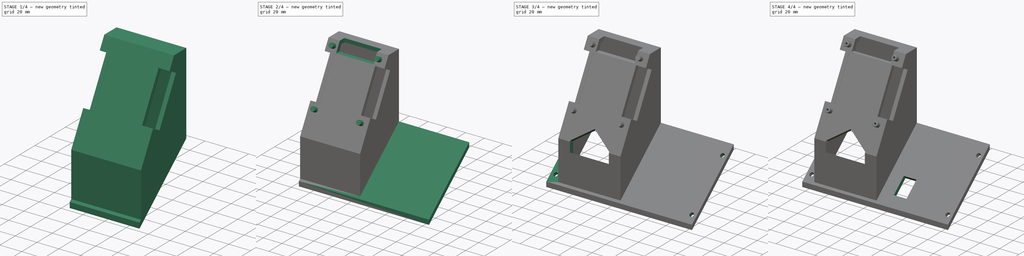
[diagram: build sequence overview — one tinted view per stage of 4, left to right]
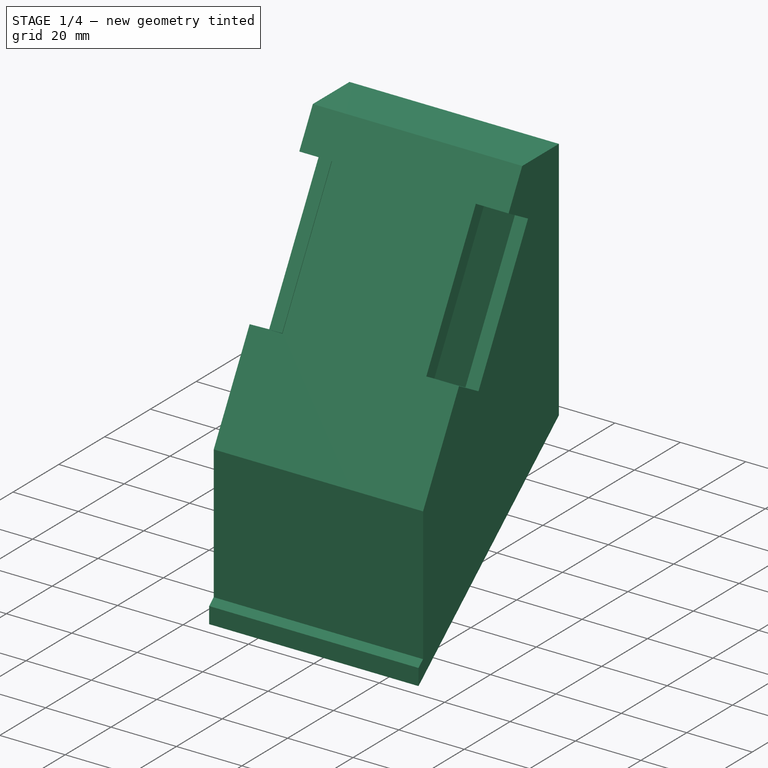
[diagram: stage 1 of 4 — iso view after this stage's code; geometry added in this stage tinted green]
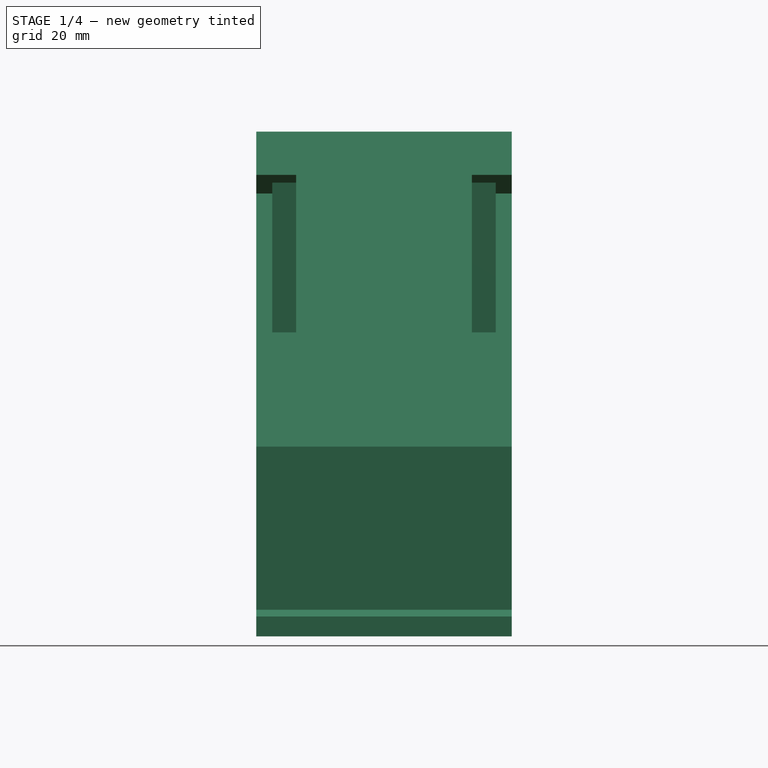
[diagram: stage 1 of 4 — front view after this stage's code; geometry added in this stage tinted green]
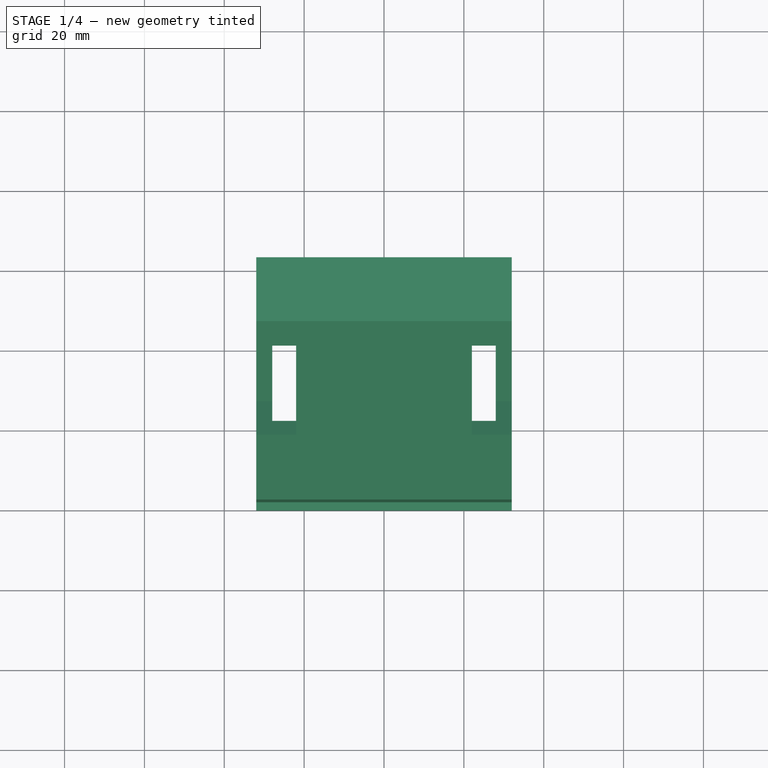
[diagram: stage 1 of 4 — top view after this stage's code; geometry added in this stage tinted green]
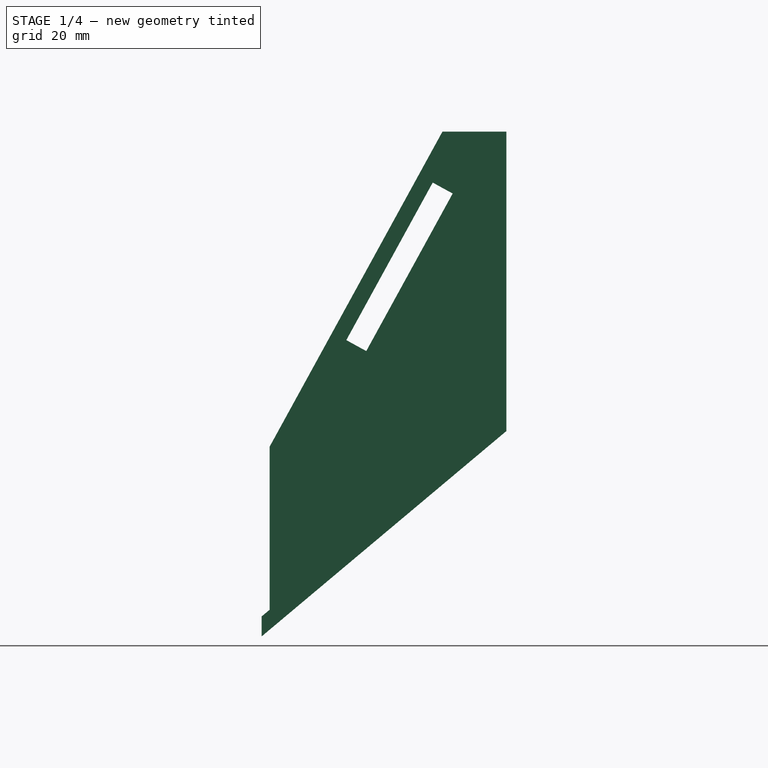
[diagram: stage 1 of 4 — right view after this stage's code; geometry added in this stage tinted green]
FCSTD DOCUMENT  (FreeCAD 2023.521R14555 (Git shallow))
Label: Controller_holder
License: All rights reserved
LicenseURL: https://en.wikipedia.org/wiki/All_rights_reserved
objects: Sketcher::SketchObject×11, PartDesign::Pocket×6, PartDesign::Pad×5, PartDesign::Fillet×2, PartDesign::Mirrored×1, PartDesign::Body×1
note: 65 computed .brp shape members not serialized (recipe doc carries the construction recipe); baked Part::Feature solids carry a one-line shape summary decoded from their .brp

FEATURE [Sketcher::SketchObject] Sketch
  ArcFitTolerance = 1e-06
  AttachmentSupport = -> [YZ_Plane]
  ExternalBSplineMaxDegree = 5
  ExternalBSplineTolerance = 0.0001
  FixShape = 1
  FullyConstrained = true
  InternalTolerance = 1e-06
  InvalidShape = false
  MakeInternals = false
  MapMode = 5
  Placement = pos=(0,0,0) rot=(0.57735,0.57735,0.57735;2.0944rad)
  Support = -> [YZ_Plane]
  TreeRank = 11
  ValidateShape = false
  sketch-geometry (18):
    g0: LineSegment [constr] StartX=0 StartY=0 StartZ=0 EndX=61.2836 EndY=51.423 EndZ=0
    g1: LineSegment StartX=61.2836 StartY=51.423 StartZ=0 EndX=61.2836 EndY=126.423 EndZ=0
    g2: LineSegment StartX=0 StartY=5 StartZ=0 EndX=0 EndY=0 EndZ=0
    g3: LineSegment StartX=61.2836 StartY=126.423 StartZ=0 EndX=45.2836 EndY=126.423 EndZ=0
    g4: LineSegment StartX=45.2836 StartY=126.423 StartZ=0 EndX=2 EndY=47.5146 EndZ=0
    g5: LineSegment StartX=2 StartY=47.5146 StartZ=0 EndX=2 EndY=27.5146 EndZ=0
    g6: LineSegment StartX=0 StartY=0 StartZ=0 EndX=6.56225 EndY=5.50638 EndZ=0
    g7: LineSegment StartX=61.2836 StartY=51.423 StartZ=0 EndX=57.2836 EndY=48.0666 EndZ=0
    g8: LineSegment StartX=0 StartY=5 StartZ=0 EndX=2 EndY=6.6782 EndZ=0
    g9: LineSegment StartX=2 StartY=27.5146 StartZ=0 EndX=2 EndY=6.6782 EndZ=0
    g10: LineSegment StartX=47.6517 StartY=122.423 StartZ=0 EndX=6.56225 EndY=47.5146 EndZ=0
    g11: LineSegment StartX=6.56225 StartY=47.5146 StartZ=0 EndX=6.56225 EndY=5.50638 EndZ=0
    g12: LineSegment StartX=47.6517 StartY=122.423 StartZ=0 EndX=57.2836 EndY=122.423 EndZ=0
    g13: LineSegment StartX=57.2836 StartY=122.423 StartZ=0 EndX=57.2836 EndY=48.0666 EndZ=0
    g14: LineSegment [constr] StartX=57.2836 StartY=122.423 StartZ=0 EndX=61.2836 EndY=122.423 EndZ=0
    g15: LineSegment [constr] StartX=57.2836 StartY=122.423 StartZ=0 EndX=57.2836 EndY=126.423 EndZ=0
    g16: LineSegment [constr] StartX=47.6517 StartY=122.423 StartZ=0 EndX=44.1447 EndY=124.347 EndZ=0
    g17: LineSegment [constr] StartX=2 StartY=47.5146 StartZ=0 EndX=6.56225 EndY=47.5146 EndZ=0
  constraints (51):
    c: Coincident(g0,g-1)
    c: Coincident(g2,g0)
    c: Coincident(g0,g1)
    c: Vertical(g1)
    c: Distance(g0) = 80
    c: Angle(g-1,g0) = 0.698132
    c: DistanceY(g1,g1) = 75
    c: Coincident(g3,g1)
    c: Horizontal(g3)
    c: Coincident(g4,g3)
    c: Coincident(g5,g4)
    c: Vertical(g5)
    c: Distance(g4) = 90
    c: DistanceX(g3,g3) = 16
    c: Vertical(g2)
    c: DistanceY(g2,g2) = 5
    c: Coincident(g6,g2)
    c: PointOnObject(g6,g0)
    c: Coincident(g7,g1)
    c: PointOnObject(g7,g0)
    c: Coincident(g8,g2)
    c: Coincident(g9,g5)
    c: Coincident(g9,g8)
    c: Vertical(g9)
    c: Parallel(g8,g6)
    c: DistanceY(g5,g5) = 20
    c: DistanceX(g2,g8) = 2
    c: Coincident(g11,g10)
    c: Vertical(g11)
    c: Coincident(g11,g6)
    c: Parallel(g10,g4)
    c: Coincident(g12,g10)
    c: Coincident(g13,g12)
    c: Coincident(g13,g7)
    c: Vertical(g13)
    c: Horizontal(g12)
    c: DistanceX(g12,g1) = 4
    c: Coincident(g14,g12)
    c: PointOnObject(g14,g1)
    c: Horizontal(g14)
    c: Coincident(g15,g12)
    c: PointOnObject(g15,g3)
    c: Vertical(g15)
    c: Equal(g15,g14)
    c: PointOnObject(g16,g4)
    c: Coincident(g16,g10)
    c: Perpendicular(g10,g16)
    c: Equal(g16,g15)
    c: Coincident(g17,g4)
    c: Coincident(g17,g10)
    c: Horizontal(g17)
FEATURE [PartDesign::Pad] Pad
  AddSubType = 0
  AlongSketchNormal = false
  AutoTaperInnerAngle = true
  CheckUpToFaceLimits = true
  ClaimChildren = false
  Direction = (1,-2e-16,3e-16)
  Fit = 0
  FitJoin = 0
  FixShape = 1
  InnerFit = 0
  InnerFitJoin = 0
  InvalidShape = false
  Length = 56
  Length2 = 10
  Linearize = true
  Midplane = true
  NewSolid = false
  Profile = -> Sketch
  ReferenceAxis = -> Sketch [N_Axis]
  Refine = true
  Suppress = false
  TaperInnerAngle = 0
  TaperInnerAngleRev = 0
  TreeRank = 12
  Type = 0
  ValidateShape = true
  _ProfileBasedVersion = 1
FEATURE [Sketcher::SketchObject] Sketch001
  ArcFitTolerance = 1e-06
  AttachmentSupport = -> [Pad]
  ExternalBSplineMaxDegree = 5
  ExternalBSplineTolerance = 0.0001
  ExternalGeometry = -> [Pad]
  FixShape = 1
  FullyConstrained = true
  InternalTolerance = 1e-06
  InvalidShape = false
  MakeInternals = false
  MapMode = 5
  Placement = pos=(28,-6.2e-15,6.2e-15) rot=(0.57735,0.57735,0.57735;2.0944rad)
  Support = -> [Pad]
  TreeRank = 13
  ValidateShape = false
  sketch-geometry (1):
    g0: LineSegment StartX=61.2836 StartY=51.423 StartZ=0 EndX=-7.1e-15 EndY=-7.1e-15 EndZ=0
  constraints (2):
    c: Coincident(g0,g-4)
    c: Coincident(g0,g-8)
FEATURE [PartDesign::Pad] Pad001
  AddSubType = 0
  AlongSketchNormal = false
  AutoTaperInnerAngle = true
  BaseFeature = -> Pad
  CheckUpToFaceLimits = true
  ClaimChildren = false
  Direction = (1,-2e-16,2e-16)
  Fit = 0
  FitJoin = 0
  FixShape = 1
  InnerFit = 0
  InnerFitJoin = 0
  InvalidShape = false
  Length = 4
  Length2 = 10
  Linearize = true
  NewSolid = false
  Profile = -> Sketch001
  ReferenceAxis = -> Sketch001 [N_Axis]
  Refine = true
  Suppress = false
  TaperInnerAngle = 0
  TaperInnerAngleRev = 0
  TreeRank = 14
  Type = 0
  ValidateShape = true
  _ProfileBasedVersion = 1
FEATURE [Sketcher::SketchObject] Sketch002
  ArcFitTolerance = 1e-06
  AttachmentSupport = -> [Pad001]
  ExternalBSplineMaxDegree = 5
  ExternalBSplineTolerance = 0.0001
  ExternalGeometry = -> [Pad001]
  FixShape = 1
  FullyConstrained = true
  InternalTolerance = 1e-06
  InvalidShape = false
  MakeInternals = false
  MapMode = 5
  Placement = pos=(32,-8e-15,7.5e-15) rot=(0.57735,0.57735,0.57735;2.0944rad)
  Support = -> [Pad001]
  TreeRank = 15
  ValidateShape = false
  sketch-geometry (6):
    g0: LineSegment StartX=42.8424 StartY=113.655 StartZ=0 EndX=47.8424 EndY=110.913 EndZ=0
    g1: LineSegment StartX=47.8424 StartY=110.913 StartZ=0 EndX=26.2006 EndY=71.4586 EndZ=0
    g2: LineSegment StartX=26.2006 StartY=71.4586 StartZ=0 EndX=21.2006 EndY=74.2012 EndZ=0
    g3: LineSegment StartX=42.8424 StartY=113.655 StartZ=0 EndX=34.0748 EndY=118.465 EndZ=0
    g4: LineSegment StartX=34.0748 StartY=118.465 StartZ=0 EndX=12.433 EndY=79.0105 EndZ=0
    g5: LineSegment StartX=12.433 StartY=79.0105 StartZ=0 EndX=21.2006 EndY=74.2012 EndZ=0
  constraints (18):
    c: PointOnObject(g0,g-3)
    c: Coincident(g1,g0)
    c: Coincident(g2,g1)
    c: PointOnObject(g2,g-3)
    c: Coincident(g3,g0)
    c: Coincident(g5,g4)
    c: Coincident(g5,g2)
    c: Parallel(g5,g2)
    c: Parallel(g2,g3)
    c: Parallel(g3,g0)
    c: Distance(g1) = 45
    c: Distance(g0,g-3) = 10
    c: Coincident(g3,g4)
    c: Parallel(g4,g-3)
    c: Parallel(g-3,g1)
    c: Perpendicular(g3,g-3)
    c: Distance(g3) = 10
    c: DistanceX(g0,g0) = 5
FEATURE [PartDesign::Pocket] Pocket
  AddSubType = 1
  AlongSketchNormal = false
  AutoTaperInnerAngle = true
  BaseFeature = -> Pad001
  CheckUpToFaceLimits = true
  ClaimChildren = false
  Direction = (-1,2e-16,-2e-16)
  Fit = 0
  FitJoin = 0
  FixShape = 1
  InnerFit = 0
  InnerFitJoin = 0
  InvalidShape = false
  Length = 10
  Length2 = 10
  Linearize = true
  NewSolid = false
  Profile = -> Sketch002
  ReferenceAxis = -> Sketch002 [N_Axis]
  Refine = true
  Suppress = false
  TaperInnerAngle = 0
  TaperInnerAngleRev = 0
  TreeRank = 16
  Type = 0
  ValidateShape = true
  _ProfileBasedVersion = 1
  _Version = 1
FEATURE [PartDesign::Mirrored] Mirrored
  AddSubType = 0
  BaseFeature = -> Pocket
  CopyShape = false
  FixShape = 1
  InvalidShape = false
  MirrorPlane = -> YZ_Plane
  NewSolid = false
  OriginalSubs = -> [Pocket,Pad001]
  Originals = -> [Pocket,Pad001]
  ParallelTransform = true
  Refine = true
  SubTransform = true
  Suppress = false
  TreeRank = 17
  ValidateShape = true
  _Version = 3
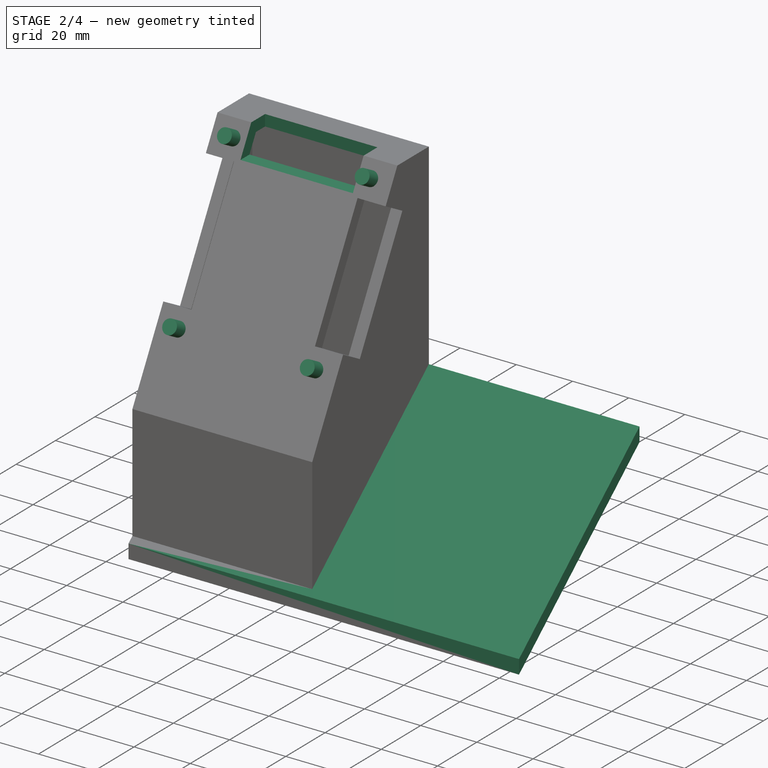
[diagram: stage 2 of 4 — iso view after this stage's code; geometry added in this stage tinted green]
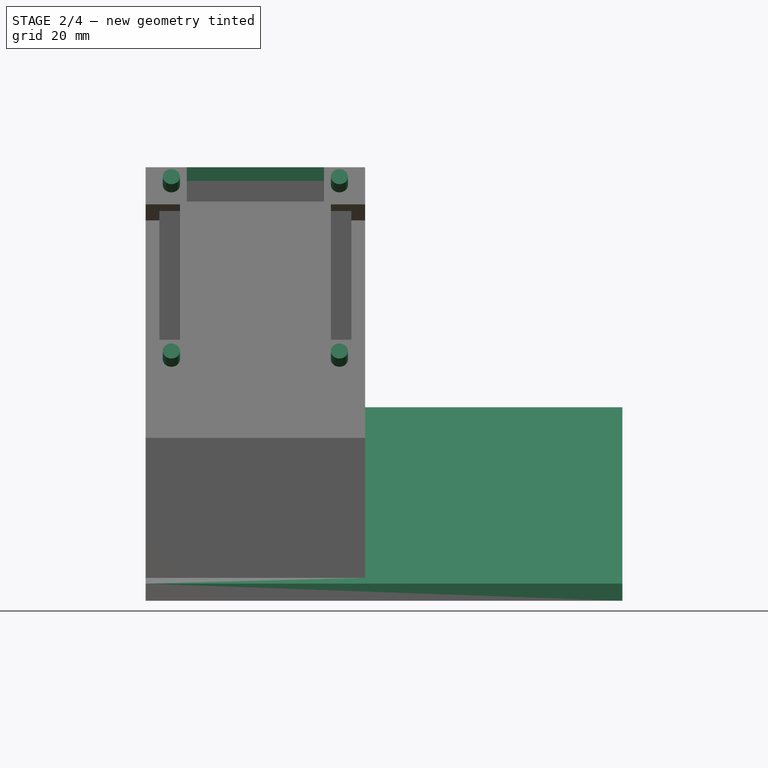
[diagram: stage 2 of 4 — front view after this stage's code; geometry added in this stage tinted green]
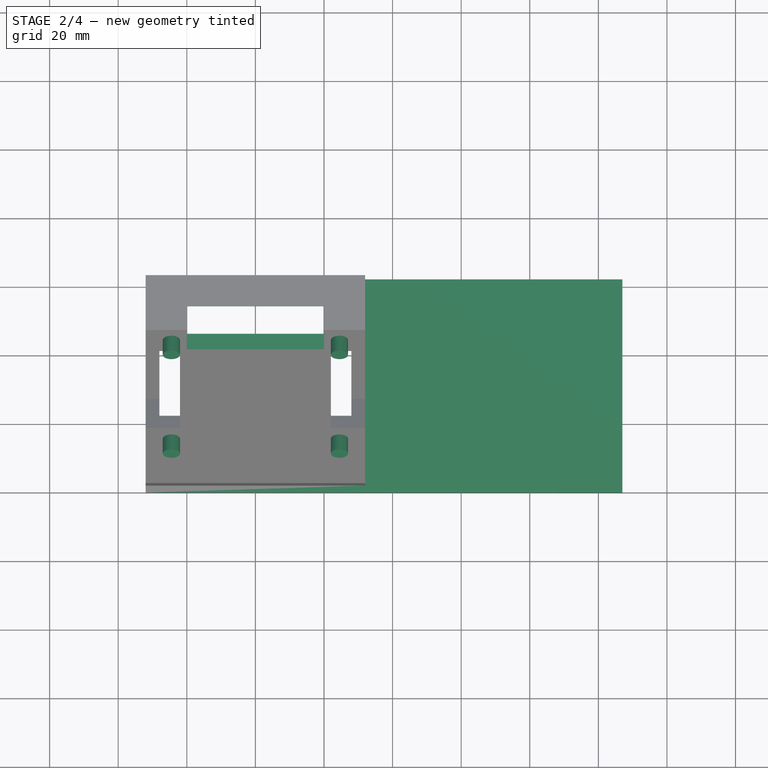
[diagram: stage 2 of 4 — top view after this stage's code; geometry added in this stage tinted green]
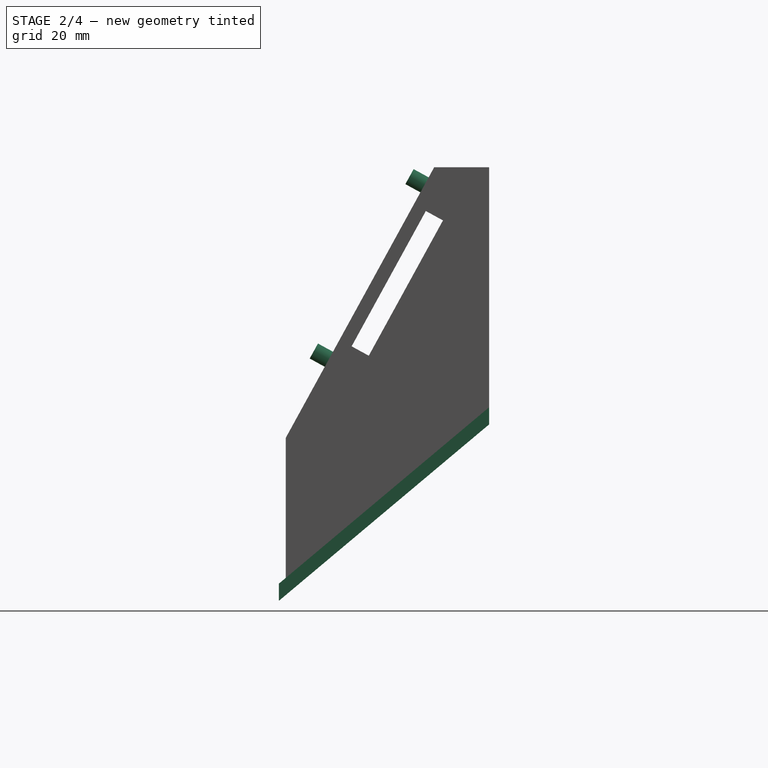
[diagram: stage 2 of 4 — right view after this stage's code; geometry added in this stage tinted green]
FEATURE [Sketcher::SketchObject] Sketch003
  ArcFitTolerance = 1e-06
  AttachmentSupport = -> [Mirrored]
  ExternalBSplineMaxDegree = 5
  ExternalBSplineTolerance = 0.0001
  ExternalGeometry = -> [Mirrored]
  FixShape = 1
  FullyConstrained = true
  InternalTolerance = 1e-06
  InvalidShape = false
  MakeInternals = false
  MapMode = 5
  Placement = pos=(-1.74e-14,-8.98e-14,126.423) rot=(0,0,1;0rad)
  Support = -> [Mirrored]
  TreeRank = 18
  ValidateShape = false
  sketch-geometry (7):
    g0: LineSegment StartX=-20 StartY=45.2836 StartZ=0 EndX=-20 EndY=35.2836 EndZ=0
    g1: LineSegment StartX=-20 StartY=35.2836 StartZ=0 EndX=20 EndY=35.2836 EndZ=0
    g2: LineSegment StartX=20 StartY=35.2836 StartZ=0 EndX=20 EndY=45.2836 EndZ=0
    g3: LineSegment StartX=20 StartY=45.2836 StartZ=0 EndX=20 EndY=52.2836 EndZ=0
    g4: LineSegment StartX=-20 StartY=52.2836 StartZ=0 EndX=-20 EndY=45.2836 EndZ=0
    g5: GeomPoint [constr] X=7.4e-15 Y=45.2836 Z=0
    g6: LineSegment StartX=-20 StartY=52.2836 StartZ=0 EndX=20 EndY=52.2836 EndZ=0
  constraints (18):
    c: Horizontal(g1)
    c: Coincident(g2,g1)
    c: Coincident(g3,g2)
    c: Coincident(g4,g0)
    c: Coincident(g0,g1)
    c: Parallel(g0,g4)
    c: Parallel(g4,g3)
    c: Parallel(g3,g2)
    c: Parallel(g2,g-2)
    c: Symmetric(g0,g2,g5)
    c: DistanceY(g2,g2) = 10
    c: DistanceX(g1,g1) = 40
    c: Symmetric(g-3,g-3,g5)
    c: Horizontal(g0,g-3)
    c: Horizontal(g6)
    c: DistanceY(g0,g6) = 17
    c: Coincident(g6,g4)
    c: Coincident(g6,g3)
FEATURE [PartDesign::Pocket] Pocket001
  AddSubType = 1
  AlongSketchNormal = false
  AutoTaperInnerAngle = true
  BaseFeature = -> Mirrored
  CheckUpToFaceLimits = true
  ClaimChildren = false
  Direction = (1e-16,7e-16,-1)
  Fit = 0
  FitJoin = 0
  FixShape = 1
  InnerFit = 0
  InnerFitJoin = 0
  InvalidShape = false
  Length = 10
  Length2 = 10
  Linearize = true
  NewSolid = false
  Profile = -> Sketch003
  ReferenceAxis = -> Sketch003 [N_Axis]
  Refine = true
  Suppress = false
  TaperInnerAngle = 0
  TaperInnerAngleRev = 0
  TreeRank = 19
  Type = 0
  ValidateShape = true
  _ProfileBasedVersion = 1
  _Version = 1
FEATURE [Sketcher::SketchObject] Sketch004
  ArcFitTolerance = 1e-06
  AttachmentSupport = -> [Pocket001]
  ExternalBSplineMaxDegree = 5
  ExternalBSplineTolerance = 0.0001
  ExternalGeometry = -> [Pocket001]
  FixShape = 1
  FullyConstrained = true
  InternalTolerance = 1e-06
  InvalidShape = false
  MakeInternals = false
  MapMode = 5
  Placement = pos=(-4.2e-15,-18.4975,10.1464) rot=(1,0,0;1.06908rad)
  Support = -> [Pocket001]
  TreeRank = 20
  ValidateShape = false
  sketch-geometry (11):
    g0: Circle CenterX=-24.5 CenterY=126.753 CenterZ=0 NormalX=0 NormalY=0 NormalZ=1 AngleXU=0 Radius=2.5
    g1: Circle CenterX=24.5 CenterY=126.753 CenterZ=0 NormalX=0 NormalY=0 NormalZ=1 AngleXU=0 Radius=2.5
    g2: Circle CenterX=24.5 CenterY=68.7526 CenterZ=0 NormalX=0 NormalY=0 NormalZ=1 AngleXU=0 Radius=2.5
    g3: Circle CenterX=-24.5 CenterY=68.7526 CenterZ=0 NormalX=0 NormalY=0 NormalZ=1 AngleXU=0 Radius=2.5
    g4: LineSegment [constr] StartX=-24.5 StartY=68.7526 StartZ=0 EndX=-24.5 EndY=126.753 EndZ=0
    g5: LineSegment [constr] StartX=-24.5 StartY=126.753 StartZ=0 EndX=24.5 EndY=126.753 EndZ=0
    g6: LineSegment [constr] StartX=24.5 StartY=126.753 StartZ=0 EndX=24.5 EndY=68.7526 EndZ=0
    g7: LineSegment [constr] StartX=24.5 StartY=68.7526 StartZ=0 EndX=-24.5 EndY=68.7526 EndZ=0
    g8: GeomPoint [constr] X=0 Y=97.7526 Z=0
    g9: GeomPoint [constr] X=22 Y=97.7526 Z=0
    g10: GeomPoint [constr] X=24.5 Y=97.7526 Z=0
  constraints (23):
    c: Equal(g0,g1)
    c: Equal(g1,g2)
    c: Equal(g2,g3)
    c: Coincident(g4,g5)
    c: Coincident(g5,g6)
    c: Coincident(g6,g7)
    c: Coincident(g7,g4)
    c: Horizontal(g5)
    c: Horizontal(g7)
    c: Vertical(g4)
    c: Vertical(g6)
    c: Symmetric(g5,g4,g8)
    c: PointOnObject(g8,g-2)
    c: Coincident(g5,g1)
    c: Coincident(g2,g6)
    c: Coincident(g3,g4)
    c: Coincident(g0,g4)
    c: DistanceX(g5,g5) = 49
    c: DistanceY(g6,g6) = 58
    c: Diameter(g3) = 5
    c: Symmetric(g6,g6,g10)
    c: Symmetric(g-3,g-3,g9)
    c: Horizontal(g9,g10)
FEATURE [Sketcher::SketchObject] Sketch005
  ArcFitTolerance = 1e-06
  AttachmentSupport = -> [Pocket001]
  ExternalBSplineMaxDegree = 5
  ExternalBSplineTolerance = 0.0001
  ExternalGeometry = -> [Pocket001]
  FixShape = 1
  FullyConstrained = true
  InternalTolerance = 1e-06
  InvalidShape = false
  MakeInternals = false
  MapMode = 5
  Placement = pos=(32,-8e-15,7.5e-15) rot=(0.57735,0.57735,0.57735;2.0944rad)
  Support = -> [Pocket001]
  TreeRank = 21
  ValidateShape = false
  sketch-geometry (2):
    g0: LineSegment StartX=2.1e-15 StartY=5 StartZ=0 EndX=61.2836 EndY=56.423 EndZ=0
    g1: LineSegment StartX=61.2836 StartY=56.423 StartZ=0 EndX=61.2836 EndY=51.423 EndZ=0
  constraints (5):
    c: Coincident(g0,g-4)
    c: Coincident(g1,g0)
    c: Coincident(g1,g-3)
    c: Vertical(g1)
    c: Parallel(g0,g-3)
FEATURE [PartDesign::Pad] Pad002
  AddSubType = 0
  AlongSketchNormal = false
  AutoTaperInnerAngle = true
  BaseFeature = -> Pocket001
  CheckUpToFaceLimits = true
  ClaimChildren = false
  Direction = (1,-2e-16,2e-16)
  Fit = 0
  FitJoin = 0
  FixShape = 1
  InnerFit = 0
  InnerFitJoin = 0
  InvalidShape = false
  Length = 75
  Length2 = 75
  Linearize = true
  NewSolid = false
  Profile = -> Sketch005
  ReferenceAxis = -> Sketch005 [N_Axis]
  Refine = true
  Suppress = false
  TaperInnerAngle = 0
  TaperInnerAngleRev = 0
  TreeRank = 22
  Type = 0
  ValidateShape = true
  _ProfileBasedVersion = 1
FEATURE [PartDesign::Pad] Pad003
  AddSubType = 0
  AlongSketchNormal = false
  AutoTaperInnerAngle = true
  BaseFeature = -> Pad002
  CheckUpToFaceLimits = true
  ClaimChildren = false
  Direction = (-2e-16,-0.87676,0.480928)
  Fit = 0
  FitJoin = 0
  FixShape = 1
  InnerFit = 0
  InnerFitJoin = 0
  InvalidShape = false
  Length = 5
  Length2 = 10
  Linearize = true
  NewSolid = false
  Profile = -> Sketch004
  ReferenceAxis = -> Sketch004 [N_Axis]
  Refine = true
  Suppress = false
  TaperInnerAngle = 0
  TaperInnerAngleRev = 0
  TreeRank = 23
  Type = 0
  ValidateShape = true
  _ProfileBasedVersion = 1
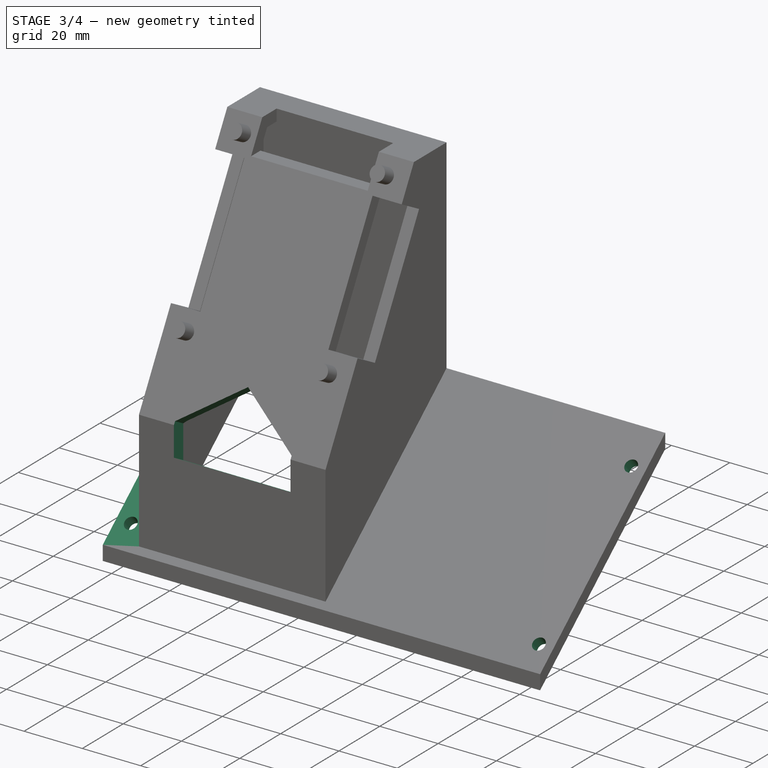
[diagram: stage 3 of 4 — iso view after this stage's code; geometry added in this stage tinted green]
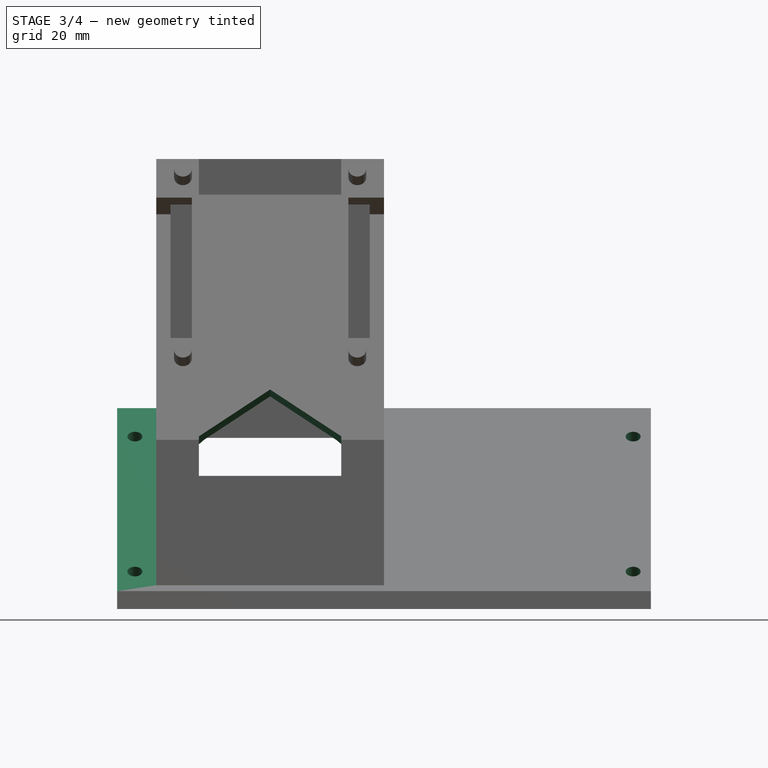
[diagram: stage 3 of 4 — front view after this stage's code; geometry added in this stage tinted green]
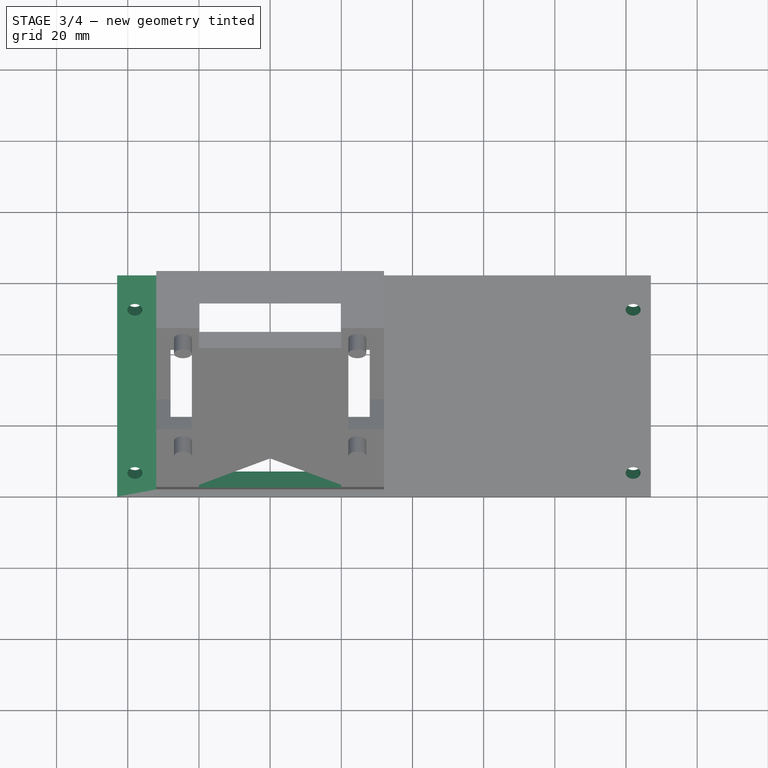
[diagram: stage 3 of 4 — top view after this stage's code; geometry added in this stage tinted green]
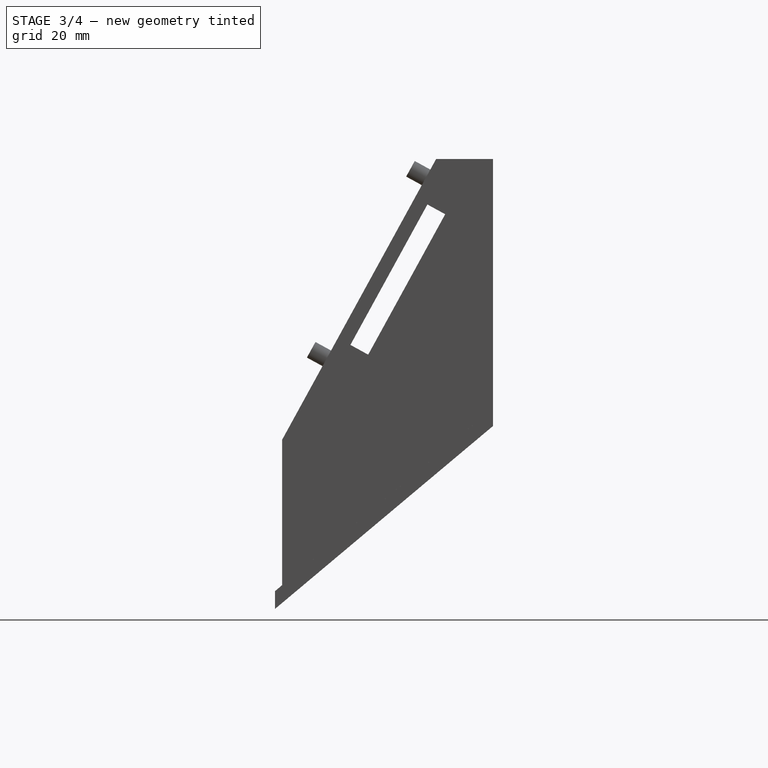
[diagram: stage 3 of 4 — right view after this stage's code; geometry added in this stage tinted green]
FEATURE [Sketcher::SketchObject] Sketch006
  ArcFitTolerance = 1e-06
  AttachmentSupport = -> [Pad003]
  ExternalBSplineMaxDegree = 5
  ExternalBSplineTolerance = 0.0001
  ExternalGeometry = -> [Pad003]
  FixShape = 1
  FullyConstrained = true
  InternalTolerance = 1e-06
  InvalidShape = false
  MakeInternals = false
  MapMode = 5
  Placement = pos=(-4.2e-15,-18.4975,10.1464) rot=(1,0,0;1.06908rad)
  Support = -> [Pad003]
  TreeRank = 24
  ValidateShape = false
  sketch-geometry (6):
    g0: LineSegment StartX=-20 StartY=33.7526 StartZ=0 EndX=-20 EndY=43.7526 EndZ=0
    g1: LineSegment StartX=20 StartY=43.7526 StartZ=0 EndX=20 EndY=33.7526 EndZ=0
    g2: LineSegment StartX=20 StartY=33.7526 StartZ=0 EndX=-20 EndY=33.7526 EndZ=0
    g3: GeomPoint [constr] X=0 Y=38.7526 Z=0
    g4: LineSegment StartX=-20 StartY=43.7526 StartZ=0 EndX=0 EndY=58.7526 EndZ=0
    g5: LineSegment StartX=0 StartY=58.7526 StartZ=0 EndX=20 EndY=43.7526 EndZ=0
  constraints (16):
    c: Coincident(g1,g2)
    c: Coincident(g2,g0)
    c: Horizontal(g2)
    c: Vertical(g0)
    c: Vertical(g1)
    c: Symmetric(g1,g0,g3)
    c: PointOnObject(g3,g-2)
    c: Vertical(g0,g-3)
    c: DistanceY(g0,g0) = 10
    c: DistanceY(g0,g-4) = 25
    c: Coincident(g4,g0)
    c: PointOnObject(g4,g-2)
    c: Coincident(g5,g4)
    c: Coincident(g5,g1)
    c: Horizontal(g1,g0)
    c: DistanceY(g1,g4) = 15
FEATURE [PartDesign::Pocket] Pocket002
  AddSubType = 1
  AlongSketchNormal = false
  AutoTaperInnerAngle = true
  BaseFeature = -> Pad003
  CheckUpToFaceLimits = true
  ClaimChildren = false
  Direction = (2e-16,0.87676,-0.480928)
  Fit = 0
  FitJoin = 0
  FixShape = 1
  InnerFit = 0
  InnerFitJoin = 0
  InvalidShape = false
  Length = 15
  Length2 = 10
  Linearize = true
  NewSolid = false
  Profile = -> Sketch006
  ReferenceAxis = -> Sketch006 [N_Axis]
  Refine = true
  Suppress = false
  TaperInnerAngle = 0
  TaperInnerAngleRev = 0
  TreeRank = 25
  Type = 0
  ValidateShape = true
  _ProfileBasedVersion = 1
  _Version = 1
FEATURE [Sketcher::SketchObject] Sketch007
  ArcFitTolerance = 1e-06
  AttachmentSupport = -> [Pocket001]
  ExternalBSplineMaxDegree = 5
  ExternalBSplineTolerance = 0.0001
  ExternalGeometry = -> [Pocket001]
  FixShape = 1
  FullyConstrained = true
  InternalTolerance = 1e-06
  InvalidShape = false
  MakeInternals = false
  MapMode = 5
  Placement = pos=(-32,-9e-16,4e-16) rot=(0.57735,-0.57735,-0.57735;2.0944rad)
  Support = -> [Pocket001]
  TreeRank = 26
  ValidateShape = false
  sketch-geometry (2):
    g0: LineSegment StartX=5.1e-15 StartY=5 StartZ=0 EndX=-61.2836 EndY=56.423 EndZ=0
    g1: LineSegment StartX=-61.2836 StartY=56.423 StartZ=0 EndX=-61.2836 EndY=51.423 EndZ=0
  constraints (5):
    c: Coincident(g0,g-4)
    c: Coincident(g1,g0)
    c: Coincident(g1,g-3)
    c: Vertical(g1)
    c: Parallel(g0,g-3)
FEATURE [PartDesign::Pad] Pad004
  AddSubType = 0
  AlongSketchNormal = false
  AutoTaperInnerAngle = true
  BaseFeature = -> Pocket002
  CheckUpToFaceLimits = true
  ClaimChildren = false
  Direction = (-1,0,0)
  Fit = 0
  FitJoin = 0
  FixShape = 1
  InnerFit = 0
  InnerFitJoin = 0
  InvalidShape = false
  Length = 10
  Length2 = 10
  Linearize = true
  NewSolid = false
  Offset = -150
  Profile = -> Sketch007
  ReferenceAxis = -> Sketch007 [N_Axis]
  Refine = true
  Suppress = false
  TaperInnerAngle = 0
  TaperInnerAngleRev = 0
  TreeRank = 27
  Type = 3
  UpToFace = -> Pocket002 [Face1]
  ValidateShape = true
  _ProfileBasedVersion = 1
FEATURE [Sketcher::SketchObject] Sketch008
  ArcFitTolerance = 1e-06
  AttachmentSupport = -> [Pad004]
  ExternalBSplineMaxDegree = 5
  ExternalBSplineTolerance = 0.0001
  ExternalGeometry = -> [Pad004]
  FixShape = 1
  FullyConstrained = true
  InternalTolerance = 1e-06
  InvalidShape = false
  MakeInternals = false
  MapMode = 5
  Placement = pos=(-7e-16,-2.46202,2.93412) rot=(1,0,0;0.698132rad)
  Support = -> [Pad004]
  TreeRank = 28
  ValidateShape = false
  sketch-geometry (8):
    g0: Circle CenterX=-38 CenterY=11.7784 CenterZ=0 NormalX=0 NormalY=0 NormalZ=1 AngleXU=0 Radius=2.1
    g1: Circle CenterX=102 CenterY=11.7784 CenterZ=0 NormalX=0 NormalY=0 NormalZ=1 AngleXU=0 Radius=2.1
    g2: Circle CenterX=-38 CenterY=70.7784 CenterZ=0 NormalX=0 NormalY=0 NormalZ=1 AngleXU=0 Radius=2.1
    g3: Circle CenterX=102 CenterY=70.7784 CenterZ=0 NormalX=0 NormalY=0 NormalZ=1 AngleXU=0 Radius=2.1
    g4: LineSegment [constr] StartX=-38 StartY=11.7784 StartZ=0 EndX=102 EndY=11.7784 EndZ=0
    g5: LineSegment [constr] StartX=102 StartY=11.7784 StartZ=0 EndX=102 EndY=70.7784 EndZ=0
    g6: LineSegment [constr] StartX=102 StartY=70.7784 StartZ=0 EndX=-38 EndY=70.7784 EndZ=0
    g7: LineSegment [constr] StartX=-38 StartY=70.7784 StartZ=0 EndX=-38 EndY=11.7784 EndZ=0
  constraints (20):
    c: DistanceX(g0,g1) = 140
    c: Coincident(g4,g5)
    c: Coincident(g5,g6)
    c: Coincident(g6,g7)
    c: Coincident(g7,g4)
    c: Horizontal(g4)
    c: Horizontal(g6)
    c: Vertical(g5)
    c: Vertical(g7)
    c: Coincident(g4,g0)
    c: Coincident(g5,g3)
    c: Coincident(g1,g4)
    c: Coincident(g2,g6)
    c: DistanceY(g7,g7) = 59
    c: DistanceY(g2,g-3) = 4
    c: DistanceX(g-4,g2) = 5
    c: Equal(g0,g1)
    c: Equal(g1,g2)
    c: Equal(g2,g3)
    c: Diameter(g0) = 4.2
FEATURE [PartDesign::Pocket] Pocket003
  AddSubType = 1
  AlongSketchNormal = false
  AutoTaperInnerAngle = true
  BaseFeature = -> Pad004
  CheckUpToFaceLimits = true
  ClaimChildren = false
  Direction = (2e-16,0.642788,-0.766044)
  Fit = 0
  FitJoin = 0
  FixShape = 1
  InnerFit = 0
  InnerFitJoin = 0
  InvalidShape = false
  Length = 5
  Length2 = 10
  Linearize = true
  NewSolid = false
  Profile = -> Sketch008
  ReferenceAxis = -> Sketch008 [N_Axis]
  Refine = true
  Suppress = false
  TaperInnerAngle = 0
  TaperInnerAngleRev = 0
  TreeRank = 29
  Type = 1
  ValidateShape = true
  _ProfileBasedVersion = 1
  _Version = 1
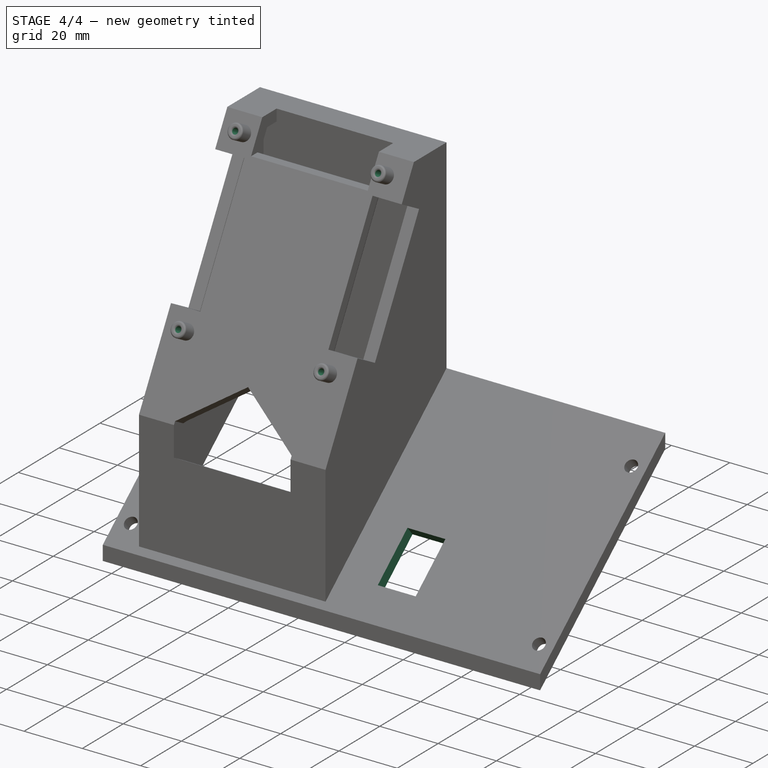
[diagram: stage 4 of 4 — iso view after this stage's code; geometry added in this stage tinted green]
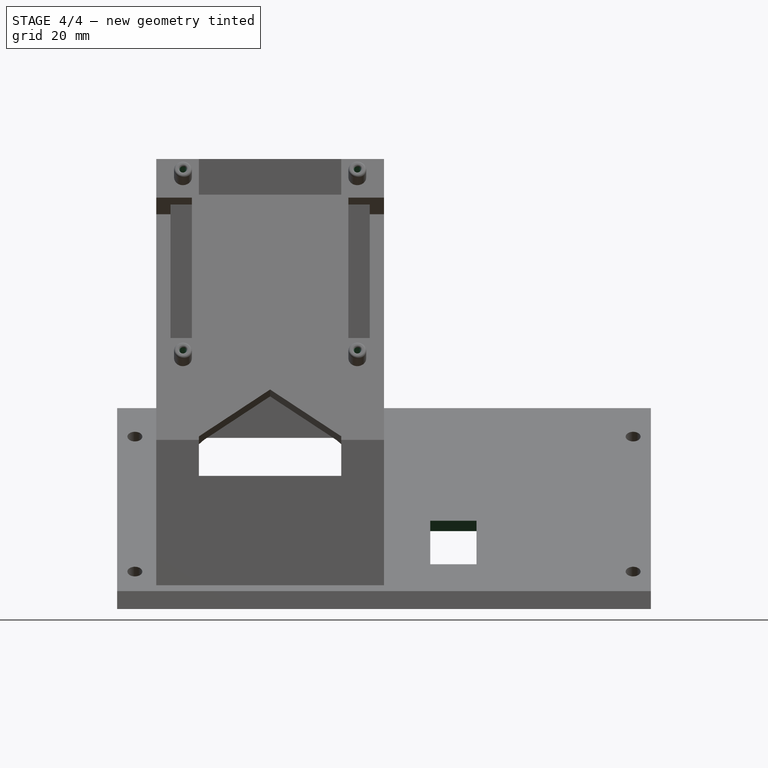
[diagram: stage 4 of 4 — front view after this stage's code; geometry added in this stage tinted green]
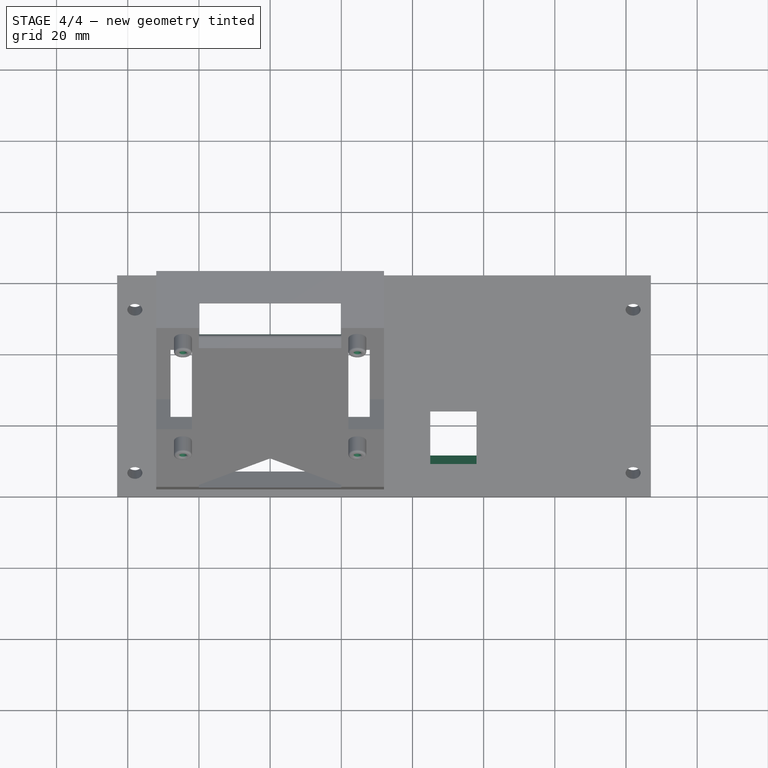
[diagram: stage 4 of 4 — top view after this stage's code; geometry added in this stage tinted green]
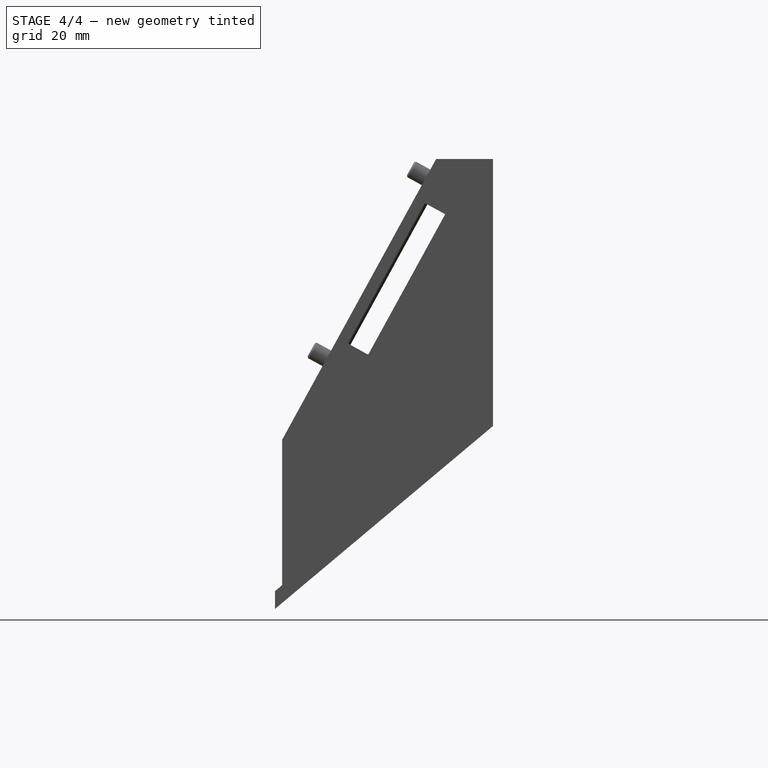
[diagram: stage 4 of 4 — right view after this stage's code; geometry added in this stage tinted green]
FEATURE [Sketcher::SketchObject] Sketch009
  ArcFitTolerance = 1e-06
  AttachmentSupport = -> [Pocket003]
  ExternalBSplineMaxDegree = 5
  ExternalBSplineTolerance = 0.0001
  FixShape = 1
  FullyConstrained = true
  InternalTolerance = 1e-06
  InvalidShape = false
  MakeInternals = false
  MapMode = 5
  Placement = pos=(-7e-16,-2.46202,2.93412) rot=(1,0,0;0.698132rad)
  Support = -> [Pocket003]
  TreeRank = 30
  ValidateShape = false
  sketch-geometry (4):
    g0: LineSegment StartX=45 StartY=15 StartZ=0 EndX=58 EndY=15 EndZ=0
    g1: LineSegment StartX=58 StartY=15 StartZ=0 EndX=58 EndY=34 EndZ=0
    g2: LineSegment StartX=58 StartY=34 StartZ=0 EndX=45 EndY=34 EndZ=0
    g3: LineSegment StartX=45 StartY=34 StartZ=0 EndX=45 EndY=15 EndZ=0
  constraints (12):
    c: Coincident(g0,g1)
    c: Coincident(g1,g2)
    c: Coincident(g2,g3)
    c: Coincident(g3,g0)
    c: Horizontal(g0)
    c: Horizontal(g2)
    c: Vertical(g1)
    c: Vertical(g3)
    c: DistanceY(g3,g3) = 19
    c: DistanceX(g0,g0) = 13
    c: DistanceX(g-1,g0) = 45
    c: DistanceY(g-1,g0) = 15
FEATURE [PartDesign::Pocket] Pocket004
  AddSubType = 1
  AlongSketchNormal = false
  AutoTaperInnerAngle = true
  BaseFeature = -> Pocket003
  CheckUpToFaceLimits = true
  ClaimChildren = false
  Direction = (2e-16,0.642788,-0.766044)
  Fit = 0
  FitJoin = 0
  FixShape = 1
  InnerFit = 0
  InnerFitJoin = 0
  InvalidShape = false
  Length = 5
  Length2 = 10
  Linearize = true
  NewSolid = false
  Profile = -> Sketch009
  ReferenceAxis = -> Sketch009 [N_Axis]
  Refine = true
  Suppress = false
  TaperInnerAngle = 0
  TaperInnerAngleRev = 0
  TreeRank = 31
  Type = 1
  ValidateShape = true
  _ProfileBasedVersion = 1
  _Version = 1
FEATURE [PartDesign::Fillet] Fillet
  AddSubType = 0
  Base = -> Pocket004 [Edge141,Edge143,Edge138]
  BaseFeature = -> Pocket004
  FixShape = 1
  InvalidShape = false
  NewSolid = false
  Radius = 1
  Refine = true
  SupportTransform = false
  Suppress = false
  TreeRank = 32
  UseAllEdges = false
  ValidateShape = true
FEATURE [Sketcher::SketchObject] Sketch010
  ArcFitTolerance = 1e-06
  AttachmentSupport = -> [Fillet]
  ExternalBSplineMaxDegree = 5
  ExternalBSplineTolerance = 0.0001
  ExternalGeometry = -> [Fillet]
  FixShape = 1
  FullyConstrained = true
  InternalTolerance = 1e-06
  InvalidShape = false
  MakeInternals = false
  MapMode = 5
  Placement = pos=(-6.8e-15,-22.8813,12.5511) rot=(1,0,0;1.06908rad)
  Support = -> [Fillet]
  TreeRank = 33
  ValidateShape = false
  sketch-geometry (4):
    g0: Circle CenterX=-24.5 CenterY=68.7526 CenterZ=0 NormalX=0 NormalY=0 NormalZ=1 AngleXU=0 Radius=0.95
    g1: Circle CenterX=-24.5 CenterY=126.753 CenterZ=0 NormalX=0 NormalY=0 NormalZ=1 AngleXU=0 Radius=0.95
    g2: Circle CenterX=24.5 CenterY=126.753 CenterZ=0 NormalX=0 NormalY=0 NormalZ=1 AngleXU=0 Radius=0.95
    g3: Circle CenterX=24.5 CenterY=68.7526 CenterZ=0 NormalX=0 NormalY=0 NormalZ=1 AngleXU=0 Radius=0.95
  constraints (8):
    c: Coincident(g0,g-4)
    c: Coincident(g2,g-6)
    c: Coincident(g-5,g1)
    c: Coincident(g3,g-3)
    c: Equal(g0,g1)
    c: Equal(g1,g2)
    c: Equal(g2,g3)
    c: Diameter(g0) = 1.9
FEATURE [PartDesign::Pocket] Pocket005
  AddSubType = 1
  AlongSketchNormal = false
  AutoTaperInnerAngle = true
  BaseFeature = -> Fillet
  CheckUpToFaceLimits = true
  ClaimChildren = false
  Direction = (3e-16,0.87676,-0.480928)
  Fit = 0
  FitJoin = 0
  FixShape = 1
  InnerFit = 0
  InnerFitJoin = 0
  InvalidShape = false
  Length = 10
  Length2 = 10
  Linearize = true
  NewSolid = false
  Profile = -> Sketch010
  ReferenceAxis = -> Sketch010 [N_Axis]
  Refine = true
  Suppress = false
  TaperInnerAngle = 0
  TaperInnerAngleRev = 0
  TreeRank = 34
  Type = 0
  ValidateShape = true
  _ProfileBasedVersion = 1
  _Version = 1
FEATURE [PartDesign::Fillet] Fillet001
  AddSubType = 0
  Base = -> Pocket005 [Edge121,Edge119,Edge123,Edge125,Edge139,Edge141,Edge137,Edge135]
  BaseFeature = -> Pocket005
  FixShape = 1
  InvalidShape = false
  NewSolid = false
  Radius = 0.6
  Refine = true
  SupportTransform = false
  Suppress = false
  TreeRank = 35
  UseAllEdges = false
  ValidateShape = true
FEATURE [PartDesign::Body] Body
  AutoGroupSolids = false
  ClaimAllChildren = false
  ExportMode = 0
  FixShape = 1
  Group = -> [Sketch,Pad,Sketch001,Pad001,Sketch002,Pocket,Mirrored,Sketch003,Pocket001,Sketch005,Sketch004,Pad002,Pad003,Sketch006,Pocket002,Sketch007,Pad004,Sketch008,Pocket003,Sketch009,Pocket004,Fillet,Sketch010,Pocket005,Fillet001]
  InvalidShape = false
  Origin = -> Origin
  Tip = -> Fillet001
  TreeRank = 10
  ValidateShape = false
  _ExportChildren = -> [Pad,Pad001,Pocket,Mirrored,Pocket001,Pad002,Pad003,Pocket002,Pad004,Pocket003,Pocket004,Fillet,Pocket005,Fillet001]
  _GroupVersion = 1
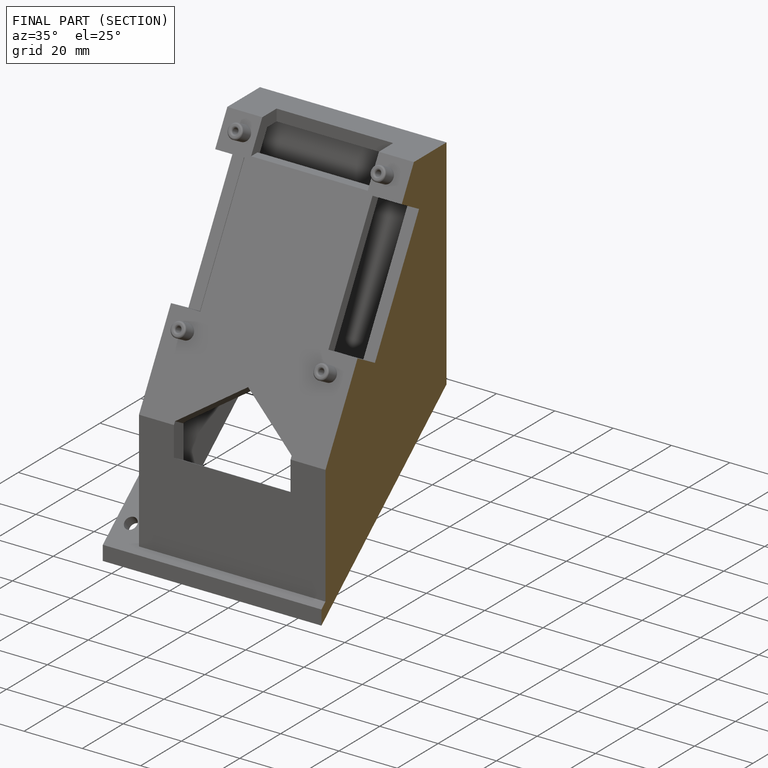
[diagram: finished part — half-section view (interior)]
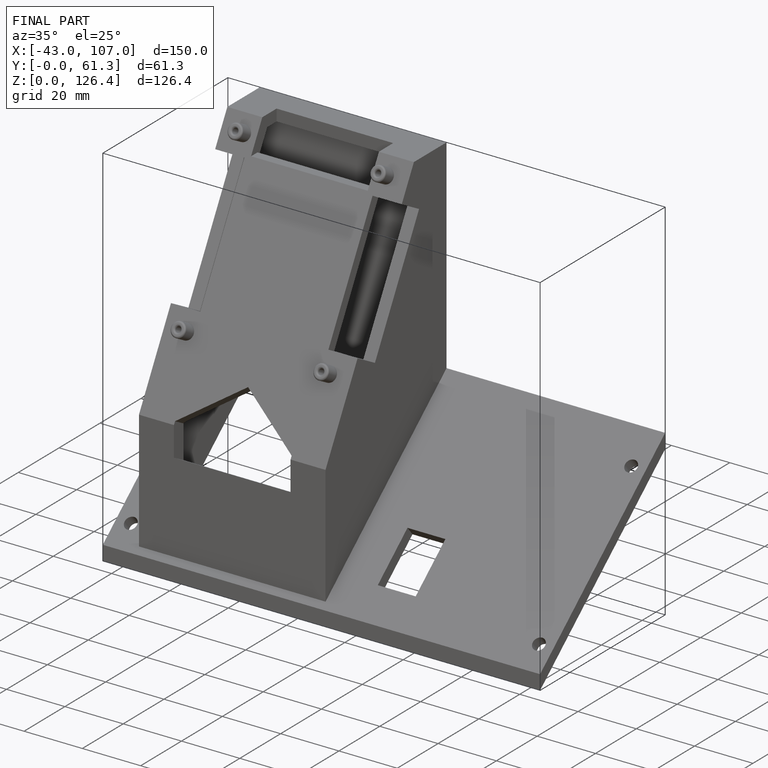
[diagram: finished part — iso view with bounding-box wireframe]
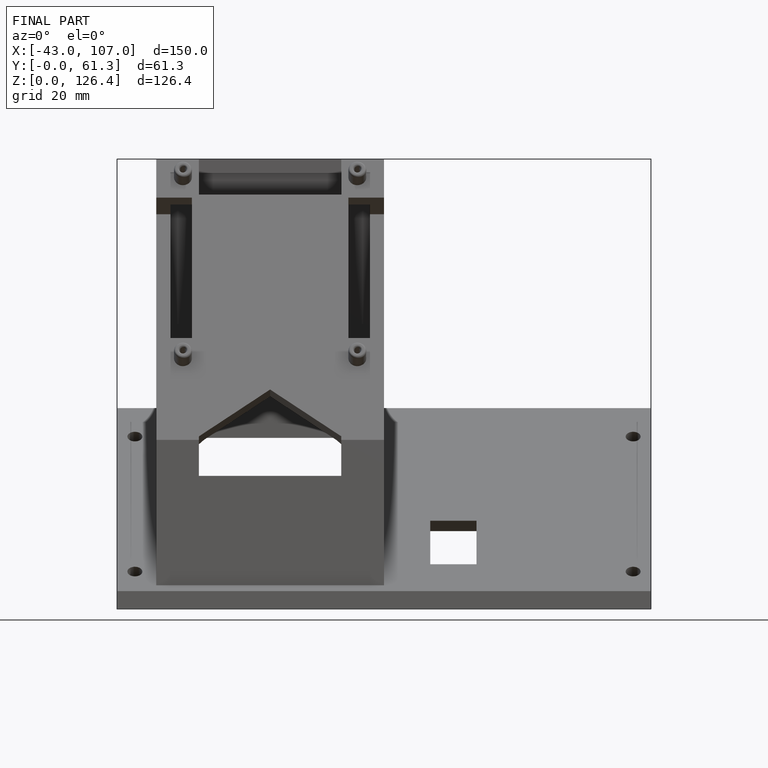
[diagram: finished part — front view with bounding-box wireframe]
